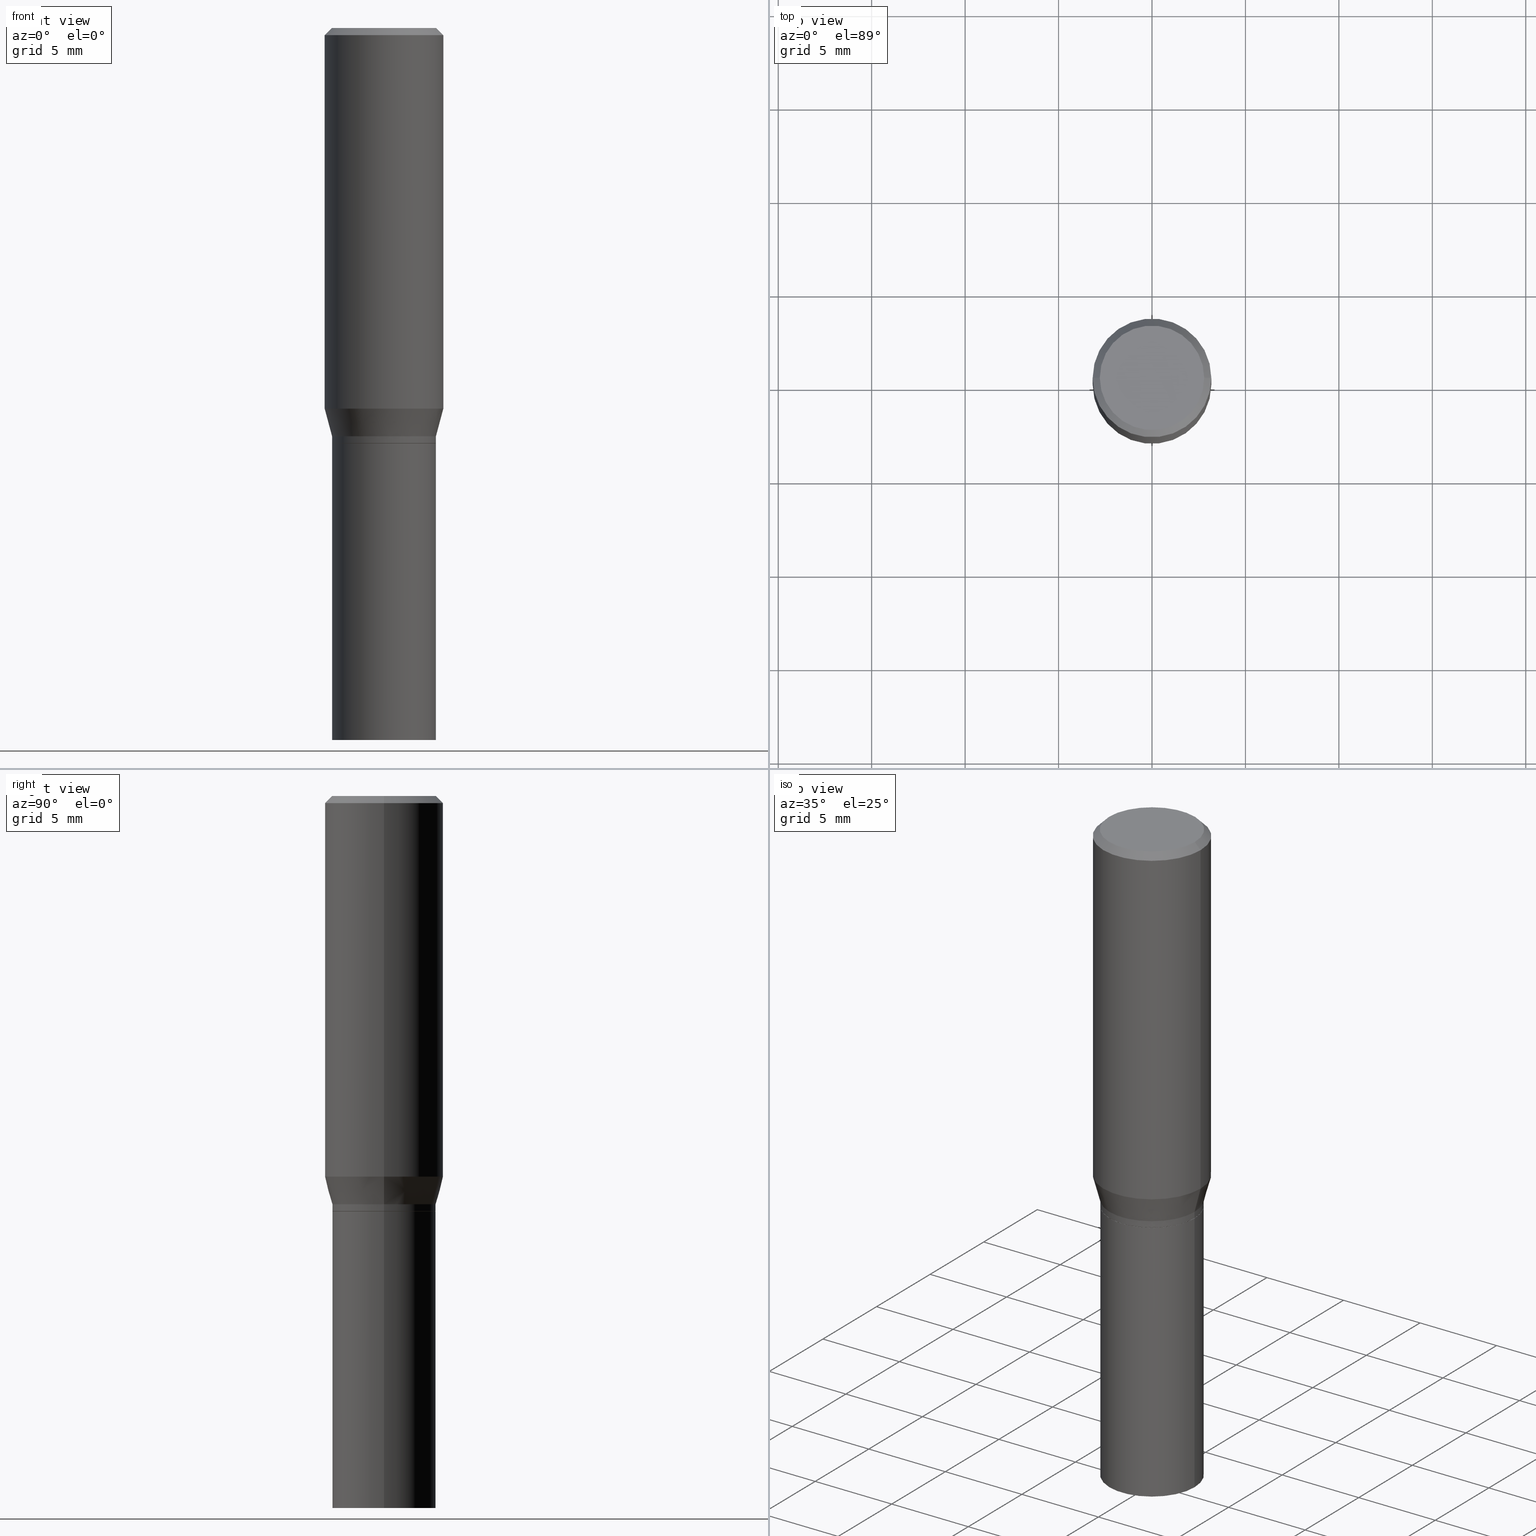
[diagram: canonical four-view strip — front | top / right | iso, engineering-drawing reading convention]
A machine part, canonical four-view strip (front | top / right | iso — engineering-drawing reading convention). The complete STEP part file that produces these views, byte-faithful:
ISO-10303-21;
HEADER;
FILE_DESCRIPTION (( 'STEP AP203' ),
    '1' );
FILE_NAME ('35280.STEP',
    '2024-03-13T16:39:05',
    ( '' ),
    ( '' ),
    'SwSTEP 2.0',
    'SolidWorks 2023',
    '' );
FILE_SCHEMA (( 'CONFIG_CONTROL_DESIGN' ));
ENDSEC;

DATA;
#1 = CALENDAR_DATE ( 2024, 13, 3 ) ;
#2 = CARTESIAN_POINT ( 'NONE',  ( -0.1094000000000000389, -2.225340198483555672E-15, -0.8600000000000000977 ) ) ;
#3 = CC_DESIGN_PERSON_AND_ORGANIZATION_ASSIGNMENT ( #339, #132, ( #230 ) ) ;
#4 = CIRCLE ( 'NONE', #295, 0.1088999999999999968 ) ;
#5 = DIRECTION ( 'NONE',  ( -1.000000000000000000, 6.982962677686266711E-15, 0.000000000000000000 ) ) ;
#6 = CARTESIAN_POINT ( 'NONE',  ( 3.668203209277704895E-29, -5.237222008264718177E-15, -1.500000000000000222 ) ) ;
#7 = DIRECTION ( 'NONE',  ( 1.000000000000000000, -6.982962677686269866E-15, 0.000000000000000000 ) ) ;
#8 = CARTESIAN_POINT ( 'NONE',  ( -0.1088999999999999968, -2.278615905070892449E-15, -0.8750000000000001110 ) ) ;
#9 = CARTESIAN_POINT ( 'NONE',  ( -0.1088999999999999968, -2.281265132245003256E-15, -0.8750000000000001110 ) ) ;
#10 = CC_DESIGN_DATE_AND_TIME_ASSIGNMENT ( #195, #383, ( #411 ) ) ;
#11 = ORIENTED_EDGE ( 'NONE', *, *, #313, .T. ) ;
#12 = CYLINDRICAL_SURFACE ( 'NONE', #163, 0.1093999999999999972 ) ;
#13 = ORIENTED_EDGE ( 'NONE', *, *, #288, .F. ) ;
#14 = DIRECTION ( 'NONE',  ( 1.000000000000000000, -6.982962677686266711E-15, 4.876176775795935793E-29 ) ) ;
#15 = VERTEX_POINT ( 'NONE', #8 ) ;
#16 = ADVANCED_FACE ( 'NONE', ( #149 ), #277, .T. ) ;
#17 = FACE_OUTER_BOUND ( 'NONE', #231, .T. ) ;
#18 = ORIENTED_EDGE ( 'NONE', *, *, #113, .T. ) ;
#19 = DIMENSIONAL_EXPONENTS ( 1.000000000000000000, 0.000000000000000000, 0.000000000000000000, 0.000000000000000000, 0.000000000000000000, 0.000000000000000000, 0.000000000000000000 ) ;
#20 = DESIGN_CONTEXT ( 'detailed design', #275, 'design' ) ;
#21 = APPROVAL_ROLE ( '' ) ;
#22 = DATE_AND_TIME ( #127, #27 ) ;
#23 = LINE ( 'NONE', #135, #461 ) ;
#24 = APPROVAL_STATUS ( 'not_yet_approved' ) ;
#25 = CLOSED_SHELL ( 'NONE', ( #44, #391, #154, #79, #281, #425, #321, #185, #375, #38, #134, #258 ) ) ;
#26 = EDGE_CURVE ( 'NONE', #320, #83, #365, .T. ) ;
#27 = LOCAL_TIME ( 12, 39, 5.000000000000000000, #59 ) ;
#28 = COORDINATED_UNIVERSAL_TIME_OFFSET ( 5, 0, .BEHIND. ) ;
#29 = PERSON_AND_ORGANIZATION_ROLE ( 'creator' ) ;
#30 = EDGE_CURVE ( 'NONE', #151, #400, #253, .T. ) ;
#31 = DIRECTION ( 'NONE',  ( 1.000000000000000000, -6.982962677686266711E-15, 4.876001053725558154E-29 ) ) ;
#32 = CONICAL_SURFACE ( 'NONE', #293, 0.1250000000000000000, 0.7853981633974483900 ) ;
#33 = AXIS2_PLACEMENT_3D ( 'NONE', #447, #189, #362 ) ;
#34 = CARTESIAN_POINT ( 'NONE',  ( -0.1093999999999999972, -3.368800336954685870E-15, -1.500000000000000222 ) ) ;
#35 = EDGE_LOOP ( 'NONE', ( #453, #46, #416, #188 ) ) ;
#36 = CARTESIAN_POINT ( 'NONE',  ( 0.1100000000000000006, -8.322946247794786836E-16, -7.674416657715788472E-18 ) ) ;
#37 = CARTESIAN_POINT ( 'NONE',  ( 1.960727997524298183E-29, -2.799399933701343752E-15, -0.8017800074019261203 ) ) ;
#38 = ADVANCED_FACE ( 'NONE', ( #422 ), #308, .F. ) ;
#39 = AXIS2_PLACEMENT_3D ( 'NONE', #382, #200, #198 ) ;
#40 = CC_DESIGN_SECURITY_CLASSIFICATION ( #411, ( #286 ) ) ;
#41 = CARTESIAN_POINT ( 'NONE',  ( 2.139785205411994522E-29, -3.055046171487752730E-15, -0.8750000000000001110 ) ) ;
#42 = DIRECTION ( 'NONE',  ( -2.445468806185136597E-29, 3.491481338843145583E-15, 1.000000000000000000 ) ) ;
#43 = VERTEX_POINT ( 'NONE', #347 ) ;
#44 = ADVANCED_FACE ( 'NONE', ( #95 ), #98, .T. ) ;
#45 = CARTESIAN_POINT ( 'NONE',  ( 0.1250000000000000000, -9.252425547934304180E-16, -0.01499999999999999944 ) ) ;
#46 = ORIENTED_EDGE ( 'NONE', *, *, #30, .T. ) ;
#47 = AXIS2_PLACEMENT_3D ( 'NONE', #6, #212, #147 ) ;
#48 = LINE ( 'NONE', #408, #387 ) ;
#49 = ORIENTED_EDGE ( 'NONE', *, *, #359, .F. ) ;
#50 = DIRECTION ( 'NONE',  ( -2.445468806185136597E-29, 3.491481338843145583E-15, 1.000000000000000000 ) ) ;
#51 = ORIENTED_EDGE ( 'NONE', *, *, #192, .F. ) ;
#52 = EDGE_CURVE ( 'NONE', #54, #431, #236, .T. ) ;
#53 = DIRECTION ( 'NONE',  ( 1.000000000000000000, -6.982962677686264344E-15, 0.000000000000000000 ) ) ;
#54 = VERTEX_POINT ( 'NONE', #460 ) ;
#55 = CALENDAR_DATE ( 2024, 13, 3 ) ;
#56 = CC_DESIGN_APPROVAL ( #348, ( #411 ) ) ;
#57 = DIRECTION ( 'NONE',  ( 1.000000000000000000, -6.982962677686265922E-15, 4.876176775795935793E-29 ) ) ;
#58 = MECHANICAL_CONTEXT ( 'NONE', #403, 'mechanical' ) ;
#59 = COORDINATED_UNIVERSAL_TIME_OFFSET ( 5, 0, .BEHIND. ) ;
#60 = DIRECTION ( 'NONE',  ( -2.438088387897960049E-29, 3.491481338843145188E-15, 1.000000000000000000 ) ) ;
#61 = PERSON_AND_ORGANIZATION ( #162, #92 ) ;
#62 = CARTESIAN_POINT ( 'NONE',  ( 2.103103173319217765E-29, -3.002673951405105651E-15, -0.8600000000000000977 ) ) ;
#63 = AXIS2_PLACEMENT_3D ( 'NONE', #138, #428, #101 ) ;
#64 =( LENGTH_UNIT ( ) NAMED_UNIT ( * ) SI_UNIT ( $, .METRE. ) );
#65 = CARTESIAN_POINT ( 'NONE',  ( 0.1088999999999999968, -3.815490807087786506E-15, -0.8750000000000001110 ) ) ;
#66 = PRODUCT_RELATED_PRODUCT_CATEGORY ( 'detail', '', ( #230 ) ) ;
#67 = DIRECTION ( 'NONE',  ( -2.445468806185136597E-29, 3.491481338843145583E-15, 1.000000000000000000 ) ) ;
#68 = DIRECTION ( 'NONE',  ( 1.000000000000000000, -6.982962677686266711E-15, 4.876001053725558154E-29 ) ) ;
#69 = ORIENTED_EDGE ( 'NONE', *, *, #414, .T. ) ;
#70 = AXIS2_PLACEMENT_3D ( 'NONE', #37, #168, #283 ) ;
#71 = VECTOR ( 'NONE', #360, 39.37007874015748143 ) ;
#72 = FACE_OUTER_BOUND ( 'NONE', #262, .T. ) ;
#73 = DIRECTION ( 'NONE',  ( 2.445468806185136597E-29, -3.491481338843145583E-15, -1.000000000000000000 ) ) ;
#74 = ADVANCED_FACE ( 'NONE', ( #128 ), #270, .F. ) ;
#75 = DIRECTION ( 'NONE',  ( -1.000000000000000000, 6.982962677686266711E-15, 0.000000000000000000 ) ) ;
#76 = AXIS2_PLACEMENT_3D ( 'NONE', #206, #60, #57 ) ;
#77 = CONICAL_SURFACE ( 'NONE', #63, 0.1094000000000000389, 0.2617993877991507401 ) ;
#78 = LINE ( 'NONE', #218, #71 ) ;
#79 = ADVANCED_FACE ( 'NONE', ( #234 ), #279, .T. ) ;
#80 = CARTESIAN_POINT ( 'NONE',  ( -0.1250000000000000000, -5.377076571918702821E-16, -0.01499999999999999944 ) ) ;
#81 = ORIENTED_EDGE ( 'NONE', *, *, #229, .T. ) ;
#82 = CARTESIAN_POINT ( 'NONE',  ( 0.1094000000000000528, -3.817236547757208798E-15, -0.8745000000000000551 ) ) ;
#83 = VERTEX_POINT ( 'NONE', #379 ) ;
#84 = APPROVAL_PERSON_ORGANIZATION ( #237, #399, #235 ) ;
#85 = DIRECTION ( 'NONE',  ( -0.7071067811865475727, 2.468850131082257455E-15, -0.7071067811865474617 ) ) ;
#86 = EDGE_CURVE ( 'NONE', #15, #54, #440, .T. ) ;
#87 = ORIENTED_EDGE ( 'NONE', *, *, #192, .T. ) ;
#88 = DIRECTION ( 'NONE',  ( -2.445468806185136597E-29, 3.491481338843145583E-15, 1.000000000000000000 ) ) ;
#89 = EDGE_LOOP ( 'NONE', ( #366, #392, #257, #317 ) ) ;
#90 = ORIENTED_EDGE ( 'NONE', *, *, #238, .T. ) ;
#91 = AXIS2_PLACEMENT_3D ( 'NONE', #356, #216, #357 ) ;
#92 = ORGANIZATION ( 'UNSPECIFIED', 'UNSPECIFIED', '' ) ;
#93 = DIRECTION ( 'NONE',  ( -1.000000000000000000, 6.982962677686265922E-15, -4.876176775795935793E-29 ) ) ;
#94 = CC_DESIGN_PERSON_AND_ORGANIZATION_ASSIGNMENT ( #349, #29, ( #286 ) ) ;
#95 = FACE_OUTER_BOUND ( 'NONE', #190, .T. ) ;
#96 = APPROVAL_DATE_TIME ( #22, #436 ) ;
#97 = CARTESIAN_POINT ( 'NONE',  ( 0.000000000000000000, 0.000000000000000000, 0.000000000000000000 ) ) ;
#98 = CYLINDRICAL_SURFACE ( 'NONE', #136, 0.1094000000000000389 ) ;
#99 = CONICAL_SURFACE ( 'NONE', #322, 0.1250000000000000000, 0.7853981633974483900 ) ;
#100 = DIRECTION ( 'NONE',  ( -2.445468806185136597E-29, 3.491481338843145583E-15, 1.000000000000000000 ) ) ;
#101 = DIRECTION ( 'NONE',  ( 1.000000000000000000, -6.982962677686266711E-15, 0.000000000000000000 ) ) ;
#102 = ORIENTED_EDGE ( 'NONE', *, *, #243, .F. ) ;
#103 = DIRECTION ( 'NONE',  ( 1.000000000000000000, -6.982962677686266711E-15, 0.000000000000000000 ) ) ;
#104 = ORIENTED_EDGE ( 'NONE', *, *, #26, .F. ) ;
#105 = AXIS2_PLACEMENT_3D ( 'NONE', #318, #112, #465 ) ;
#106 = EDGE_CURVE ( 'NONE', #43, #226, #384, .T. ) ;
#107 = CARTESIAN_POINT ( 'NONE',  ( -0.1093999999999999972, -3.368800336954685870E-15, -0.8750000000000001110 ) ) ;
#108 = ORIENTED_EDGE ( 'NONE', *, *, #451, .T. ) ;
#109 = DIRECTION ( 'NONE',  ( 1.000000000000000000, -6.982962677686264344E-15, 0.000000000000000000 ) ) ;
#110 = ORIENTED_EDGE ( 'NONE', *, *, #276, .T. ) ;
#111 = EDGE_CURVE ( 'NONE', #186, #142, #23, .T. ) ;
#112 = DIRECTION ( 'NONE',  ( -2.445468806185136597E-29, 3.491481338843145583E-15, 1.000000000000000000 ) ) ;
#113 = EDGE_CURVE ( 'NONE', #83, #320, #386, .T. ) ;
#114 = CARTESIAN_POINT ( 'NONE',  ( 2.139785205411994522E-29, -3.055046171487752730E-15, -0.8750000000000001110 ) ) ;
#115 = ORIENTED_EDGE ( 'NONE', *, *, #265, .T. ) ;
#116 = FACE_OUTER_BOUND ( 'NONE', #299, .T. ) ;
#117 = ORIENTED_EDGE ( 'NONE', *, *, #30, .F. ) ;
#118 = CARTESIAN_POINT ( 'NONE',  ( 2.103103173319217765E-29, -3.002673951405105651E-15, -0.8600000000000000977 ) ) ;
#119 = EDGE_LOOP ( 'NONE', ( #220, #153, #374, #108 ) ) ;
#120 = AXIS2_PLACEMENT_3D ( 'NONE', #62, #314, #424 ) ;
#121 = EDGE_CURVE ( 'NONE', #431, #251, #232, .T. ) ;
#122 = AXIS2_PLACEMENT_3D ( 'NONE', #298, #42, #305 ) ;
#123 = CARTESIAN_POINT ( 'NONE',  ( 0.1094000000000000389, -7.639361169388778676E-16, 5.334537392720755310E-30 ) ) ;
#124 = ORIENTED_EDGE ( 'NONE', *, *, #106, .F. ) ;
#125 = DIRECTION ( 'NONE',  ( 1.000000000000000000, 0.000000000000000000, 0.000000000000000000 ) ) ;
#126 = ORIENTED_EDGE ( 'NONE', *, *, #214, .F. ) ;
#127 = CALENDAR_DATE ( 2024, 13, 3 ) ;
#128 = FACE_OUTER_BOUND ( 'NONE', #223, .T. ) ;
#129 = VECTOR ( 'NONE', #324, 39.37007874015748854 ) ;
#130 = PERSON_AND_ORGANIZATION_ROLE ( 'design_supplier' ) ;
#131 = AXIS2_PLACEMENT_3D ( 'NONE', #178, #327, #7 ) ;
#132 = PERSON_AND_ORGANIZATION_ROLE ( 'design_owner' ) ;
#133 = DIRECTION ( 'NONE',  ( -2.445468806185136597E-29, 3.491481338843145583E-15, 1.000000000000000000 ) ) ;
#134 = ADVANCED_FACE ( 'NONE', ( #249 ), #201, .T. ) ;
#135 = CARTESIAN_POINT ( 'NONE',  ( -0.1093999999999999972, 7.773337529215495838E-16, -5.381314988738867416E-30 ) ) ;
#136 = AXIS2_PLACEMENT_3D ( 'NONE', #97, #161, #196 ) ;
#137 = VECTOR ( 'NONE', #316, 39.37007874015748143 ) ;
#138 = CARTESIAN_POINT ( 'NONE',  ( 2.103103173319217765E-29, -3.002673951405105651E-15, -0.8600000000000000977 ) ) ;
#139 = LINE ( 'NONE', #167, #137 ) ;
#140 = ORIENTED_EDGE ( 'NONE', *, *, #229, .F. ) ;
#141 = DIRECTION ( 'NONE',  ( -2.445468806185136597E-29, 3.491481338843145583E-15, 1.000000000000000000 ) ) ;
#142 = VERTEX_POINT ( 'NONE', #107 ) ;
#143 = AXIS2_PLACEMENT_3D ( 'NONE', #210, #289, #103 ) ;
#144 = CIRCLE ( 'NONE', #131, 0.1093999999999999972 ) ;
#145 = FACE_OUTER_BOUND ( 'NONE', #290, .T. ) ;
#146 = CC_DESIGN_PERSON_AND_ORGANIZATION_ASSIGNMENT ( #166, #130, ( #286 ) ) ;
#147 = DIRECTION ( 'NONE',  ( 1.000000000000000000, -6.982962677686269866E-15, 0.000000000000000000 ) ) ;
#148 = LINE ( 'NONE', #9, #338 ) ;
#149 = FACE_OUTER_BOUND ( 'NONE', #406, .T. ) ;
#150 = LINE ( 'NONE', #123, #457 ) ;
#151 = VERTEX_POINT ( 'NONE', #398 ) ;
#152 = CARTESIAN_POINT ( 'NONE',  ( 0.000000000000000000, 0.000000000000000000, 0.000000000000000000 ) ) ;
#153 = ORIENTED_EDGE ( 'NONE', *, *, #265, .F. ) ;
#154 = ADVANCED_FACE ( 'NONE', ( #72 ), #99, .T. ) ;
#155 = DIRECTION ( 'NONE',  ( -2.445468806185136877E-29, 3.491481338843145188E-15, 1.000000000000000000 ) ) ;
#156 = ORIENTED_EDGE ( 'NONE', *, *, #204, .F. ) ;
#157 = CIRCLE ( 'NONE', #183, 0.1093999999999999972 ) ;
#158 = FACE_OUTER_BOUND ( 'NONE', #449, .T. ) ;
#159 = ORIENTED_EDGE ( 'NONE', *, *, #106, .T. ) ;
#160 = APPROVAL_ROLE ( '' ) ;
#161 = DIRECTION ( 'NONE',  ( -2.445468806185136597E-29, 3.491481338843145583E-15, 1.000000000000000000 ) ) ;
#162 = PERSON ( 'UNSPECIFIED', 'UNSPECIFIED', 'UNSPECIFIED', ('UNSPECIFIED'), ('UNSPECIFIED'), ('UNSPECIFIED') ) ;
#163 = AXIS2_PLACEMENT_3D ( 'NONE', #152, #88, #452 ) ;
#164 = CALENDAR_DATE ( 2024, 13, 3 ) ;
#165 = CARTESIAN_POINT ( 'NONE',  ( 0.1093999999999999972, -7.639361169388775718E-16, 5.334537392720753909E-30 ) ) ;
#166 = PERSON_AND_ORGANIZATION ( #162, #92 ) ;
#167 = CARTESIAN_POINT ( 'NONE',  ( -0.1250000000000000000, 8.881784197001252323E-16, -6.148668862818632227E-30 ) ) ;
#168 = DIRECTION ( 'NONE',  ( -2.445468806185136597E-29, 3.491481338843145583E-15, 1.000000000000000000 ) ) ;
#169 = CC_DESIGN_DATE_AND_TIME_ASSIGNMENT ( #311, #421, ( #385 ) ) ;
#170 = ORIENTED_EDGE ( 'NONE', *, *, #238, .F. ) ;
#171 = SHAPE_DEFINITION_REPRESENTATION ( #409, #177 ) ;
#172 = CARTESIAN_POINT ( 'NONE',  ( -0.1100000000000000006, 7.943120045868128186E-16, -7.674416657726847932E-18 ) ) ;
#173 = EDGE_LOOP ( 'NONE', ( #370, #248, #444, #334 ) ) ;
#174 = CARTESIAN_POINT ( 'NONE',  ( 1.876754654212523840E-46, -2.679508254694119990E-32, -7.674416657721384454E-18 ) ) ;
#175 = EDGE_CURVE ( 'NONE', #251, #431, #182, .T. ) ;
#176 = CARTESIAN_POINT ( 'NONE',  ( 0.1093999999999999972, -3.818982288426630302E-15, -0.8750000000000001110 ) ) ;
#177 = ADVANCED_BREP_SHAPE_REPRESENTATION ( '35280', ( #221, #381, #310 ), #254 ) ;
#178 = CARTESIAN_POINT ( 'NONE',  ( 3.668203209277704895E-29, -5.237222008264718177E-15, -1.500000000000000222 ) ) ;
#179 = ORIENTED_EDGE ( 'NONE', *, *, #26, .T. ) ;
#180 = DIRECTION ( 'NONE',  ( -2.445468806185136597E-29, 3.491481338843145583E-15, 1.000000000000000000 ) ) ;
#181 = EDGE_LOOP ( 'NONE', ( #446, #69, #159, #13 ) ) ;
#182 = CIRCLE ( 'NONE', #91, 0.1094000000000000528 ) ;
#183 = AXIS2_PLACEMENT_3D ( 'NONE', #434, #247, #355 ) ;
#184 = DIRECTION ( 'NONE',  ( 1.000000000000000000, -6.982962677686266711E-15, 0.000000000000000000 ) ) ;
#185 = ADVANCED_FACE ( 'NONE', ( #397 ), #32, .T. ) ;
#186 = VERTEX_POINT ( 'NONE', #34 ) ;
#187 = DIRECTION ( 'NONE',  ( 1.000000000000000000, -6.982962677686266711E-15, 0.000000000000000000 ) ) ;
#188 = ORIENTED_EDGE ( 'NONE', *, *, #451, .F. ) ;
#189 = DIRECTION ( 'NONE',  ( 2.438088387897960049E-29, -3.491481338843145188E-15, -1.000000000000000000 ) ) ;
#190 = EDGE_LOOP ( 'NONE', ( #363, #87, #404, #336 ) ) ;
#191 = AXIS2_PLACEMENT_3D ( 'NONE', #437, #141, #250 ) ;
#192 = EDGE_CURVE ( 'NONE', #251, #320, #213, .T. ) ;
#193 = VECTOR ( 'NONE', #405, 39.37007874015748143 ) ;
#194 = UNCERTAINTY_MEASURE_WITH_UNIT (LENGTH_MEASURE( 1.000000000000000082E-05 ), #278, 'distance_accuracy_value', 'NONE');
#195 = DATE_AND_TIME ( #55, #315 ) ;
#196 = DIRECTION ( 'NONE',  ( 1.000000000000000000, -6.982962677686266711E-15, 4.876176775795935232E-29 ) ) ;
#197 = APPROVAL_STATUS ( 'not_yet_approved' ) ;
#198 = DIRECTION ( 'NONE',  ( 1.000000000000000000, -6.982962677686266711E-15, 4.876176775795935793E-29 ) ) ;
#199 = PERSON_AND_ORGANIZATION ( #162, #92 ) ;
#200 = DIRECTION ( 'NONE',  ( -2.445468806185136597E-29, 3.491481338843145583E-15, 1.000000000000000000 ) ) ;
#201 = CONICAL_SURFACE ( 'NONE', #393, 0.1088999999999999968, 0.7853981633974653764 ) ;
#202 = APPROVAL_STATUS ( 'not_yet_approved' ) ;
#203 = DIRECTION ( 'NONE',  ( 1.000000000000000000, -6.982962677686266711E-15, 0.000000000000000000 ) ) ;
#204 = EDGE_CURVE ( 'NONE', #83, #400, #282, .T. ) ;
#205 = DATE_AND_TIME ( #456, #450 ) ;
#206 = CARTESIAN_POINT ( 'NONE',  ( 2.139785205411994522E-29, -3.055046171487752730E-15, -0.8750000000000001110 ) ) ;
#207 = APPROVAL_DATE_TIME ( #215, #348 ) ;
#208 = DIRECTION ( 'NONE',  ( -2.445468806185136597E-29, 3.491481338843145583E-15, 1.000000000000000000 ) ) ;
#209 = VECTOR ( 'NONE', #285, 39.37007874015748854 ) ;
#210 = CARTESIAN_POINT ( 'NONE',  ( 2.103103173319217765E-29, -3.002673951405105651E-15, -0.8600000000000000977 ) ) ;
#211 = AXIS2_PLACEMENT_3D ( 'NONE', #118, #442, #184 ) ;
#212 = DIRECTION ( 'NONE',  ( -2.445468806185136597E-29, 3.491481338843145583E-15, 1.000000000000000000 ) ) ;
#213 = LINE ( 'NONE', #439, #420 ) ;
#214 = EDGE_CURVE ( 'NONE', #297, #306, #271, .T. ) ;
#215 = DATE_AND_TIME ( #1, #241 ) ;
#216 = DIRECTION ( 'NONE',  ( -2.445468806185136597E-29, 3.491481338843145583E-15, 1.000000000000000000 ) ) ;
#217 = APPROVAL_PERSON_ORGANIZATION ( #61, #348, #21 ) ;
#218 = CARTESIAN_POINT ( 'NONE',  ( 0.1250000000000000000, -8.728703347107833388E-16, 6.095220969744919741E-30 ) ) ;
#219 = CARTESIAN_POINT ( 'NONE',  ( 0.000000000000000000, 0.000000000000000000, 0.000000000000000000 ) ) ;
#220 = ORIENTED_EDGE ( 'NONE', *, *, #429, .F. ) ;
#221 = MANIFOLD_SOLID_BREP ( 'Body-Move/Copy2[1]', #376 ) ;
#222 = DIRECTION ( 'NONE',  ( -2.445468806185136597E-29, 3.491481338843145583E-15, 1.000000000000000000 ) ) ;
#223 = EDGE_LOOP ( 'NONE', ( #266, #287 ) ) ;
#224 = AXIS2_PLACEMENT_3D ( 'NONE', #371, #252, #301 ) ;
#225 = FACE_OUTER_BOUND ( 'NONE', #181, .T. ) ;
#226 = VERTEX_POINT ( 'NONE', #176 ) ;
#227 = PLANE ( 'NONE',  #224 ) ;
#228 = ORIENTED_EDGE ( 'NONE', *, *, #407, .F. ) ;
#229 = EDGE_CURVE ( 'NONE', #400, #151, #240, .T. ) ;
#230 = PRODUCT ( '35280', '35280', '', ( #58 ) ) ;
#231 = EDGE_LOOP ( 'NONE', ( #102, #333 ) ) ;
#232 = CIRCLE ( 'NONE', #191, 0.1094000000000000528 ) ;
#233 = PERSON_AND_ORGANIZATION_ROLE ( 'creator' ) ;
#234 = FACE_OUTER_BOUND ( 'NONE', #372, .T. ) ;
#235 = APPROVAL_ROLE ( '' ) ;
#236 = LINE ( 'NONE', #65, #337 ) ;
#237 = PERSON_AND_ORGANIZATION ( #162, #92 ) ;
#238 = EDGE_CURVE ( 'NONE', #320, #151, #323, .T. ) ;
#239 = DIRECTION ( 'NONE',  ( 1.000000000000000000, -6.982962677686264344E-15, 0.000000000000000000 ) ) ;
#240 = CIRCLE ( 'NONE', #70, 0.1250000000000000000 ) ;
#241 = LOCAL_TIME ( 12, 39, 5.000000000000000000, #341 ) ;
#242 = DIRECTION ( 'NONE',  ( -2.445468806185136877E-29, 3.491481338843145188E-15, 1.000000000000000000 ) ) ;
#243 = EDGE_CURVE ( 'NONE', #43, #186, #246, .T. ) ;
#244 = CARTESIAN_POINT ( 'NONE',  ( -0.1094000000000000528, -2.275966677896780854E-15, -0.8745000000000000551 ) ) ;
#245 = EDGE_LOOP ( 'NONE', ( #413, #361 ) ) ;
#246 = CIRCLE ( 'NONE', #47, 0.1093999999999999972 ) ;
#247 = DIRECTION ( 'NONE',  ( -2.445468806185136597E-29, 3.491481338843145583E-15, 1.000000000000000000 ) ) ;
#248 = ORIENTED_EDGE ( 'NONE', *, *, #417, .T. ) ;
#249 = FACE_OUTER_BOUND ( 'NONE', #89, .T. ) ;
#250 = DIRECTION ( 'NONE',  ( 1.000000000000000000, -6.982962677686265922E-15, 0.000000000000000000 ) ) ;
#251 = VERTEX_POINT ( 'NONE', #244 ) ;
#252 = DIRECTION ( 'NONE',  ( -2.438088387897960049E-29, 3.491481338843145188E-15, 1.000000000000000000 ) ) ;
#253 = CIRCLE ( 'NONE', #284, 0.1250000000000000000 ) ;
#254 =( GEOMETRIC_REPRESENTATION_CONTEXT ( 3 ) GLOBAL_UNCERTAINTY_ASSIGNED_CONTEXT ( ( #194 ) ) GLOBAL_UNIT_ASSIGNED_CONTEXT ( ( #278, #378, #273 ) ) REPRESENTATION_CONTEXT ( 'NONE', 'WORKASPACE' ) );
#255 = AXIS2_PLACEMENT_3D ( 'NONE', #219, #332, #14 ) ;
#256 = CARTESIAN_POINT ( 'NONE',  ( -0.1094000000000000389, -2.068280856242386899E-15, -0.8600000000000000977 ) ) ;
#257 = ORIENTED_EDGE ( 'NONE', *, *, #52, .T. ) ;
#258 = ADVANCED_FACE ( 'NONE', ( #145 ), #319, .T. ) ;
#259 = CARTESIAN_POINT ( 'NONE',  ( 0.1250000000000000000, -9.099344698040885245E-16, -0.01499999999999999944 ) ) ;
#260 = ORIENTED_EDGE ( 'NONE', *, *, #204, .T. ) ;
#261 = CARTESIAN_POINT ( 'NONE',  ( 3.668203209277705088E-31, -5.237222008264718399E-17, -0.01499999999999999944 ) ) ;
#262 = EDGE_LOOP ( 'NONE', ( #126, #302, #435, #438 ) ) ;
#263 = AXIS2_PLACEMENT_3D ( 'NONE', #174, #351, #68 ) ;
#264 = CARTESIAN_POINT ( 'NONE',  ( 2.139785205411994522E-29, -3.055046171487752730E-15, -0.8750000000000001110 ) ) ;
#265 = EDGE_CURVE ( 'NONE', #306, #297, #462, .T. ) ;
#266 = ORIENTED_EDGE ( 'NONE', *, *, #359, .T. ) ;
#267 = APPLICATION_PROTOCOL_DEFINITION ( 'international standard', 'config_control_design', 1994, #403 ) ;
#268 = ORIENTED_EDGE ( 'NONE', *, *, #243, .T. ) ;
#269 = PERSON_AND_ORGANIZATION ( #162, #92 ) ;
#270 = PLANE ( 'NONE',  #448 ) ;
#271 = CIRCLE ( 'NONE', #263, 0.1100000000000000006 ) ;
#272 = CC_DESIGN_APPROVAL ( #436, ( #385 ) ) ;
#273 =( NAMED_UNIT ( * ) SI_UNIT ( $, .STERADIAN. ) SOLID_ANGLE_UNIT ( ) );
#274 = DIRECTION ( 'NONE',  ( -2.445468806185136597E-29, 3.491481338843145583E-15, 1.000000000000000000 ) ) ;
#275 = APPLICATION_CONTEXT ( 'configuration controlled 3d designs of mechanical parts and assemblies' ) ;
#276 = EDGE_CURVE ( 'NONE', #151, #410, #139, .T. ) ;
#277 = CYLINDRICAL_SURFACE ( 'NONE', #432, 0.1093999999999999972 ) ;
#278 =( CONVERSION_BASED_UNIT ( 'INCH', #344 ) LENGTH_UNIT ( ) NAMED_UNIT ( #19 ) );
#279 = CYLINDRICAL_SURFACE ( 'NONE', #39, 0.1250000000000000000 ) ;
#280 = CONICAL_SURFACE ( 'NONE', #211, 0.1094000000000000389, 0.2617993877991507401 ) ;
#281 = ADVANCED_FACE ( 'NONE', ( #463 ), #77, .T. ) ;
#282 = LINE ( 'NONE', #389, #209 ) ;
#283 = DIRECTION ( 'NONE',  ( 1.000000000000000000, -6.982962677686266711E-15, 0.000000000000000000 ) ) ;
#284 = AXIS2_PLACEMENT_3D ( 'NONE', #340, #100, #203 ) ;
#285 = DIRECTION ( 'NONE',  ( 0.2588190451025219607, 1.565188264969616840E-15, 0.9659258262890678681 ) ) ;
#286 = PRODUCT_DEFINITION_FORMATION_WITH_SPECIFIED_SOURCE ( 'ANY', '', #230, .NOT_KNOWN. ) ;
#287 = ORIENTED_EDGE ( 'NONE', *, *, #288, .T. ) ;
#288 = EDGE_CURVE ( 'NONE', #142, #226, #157, .T. ) ;
#289 = DIRECTION ( 'NONE',  ( -2.445468806185136597E-29, 3.491481338843145583E-15, 1.000000000000000000 ) ) ;
#290 = EDGE_LOOP ( 'NONE', ( #51, #294, #11, #104 ) ) ;
#291 = CARTESIAN_POINT ( 'NONE',  ( 3.668203209277705088E-31, -5.237222008264718399E-17, -0.01499999999999999944 ) ) ;
#292 = DIRECTION ( 'NONE',  ( -0.7071067811865595631, 7.493145998870398336E-15, 0.7071067811865354713 ) ) ;
#293 = AXIS2_PLACEMENT_3D ( 'NONE', #291, #73, #5 ) ;
#294 = ORIENTED_EDGE ( 'NONE', *, *, #175, .T. ) ;
#295 = AXIS2_PLACEMENT_3D ( 'NONE', #264, #412, #53 ) ;
#296 = FACE_OUTER_BOUND ( 'NONE', #35, .T. ) ;
#297 = VERTEX_POINT ( 'NONE', #36 ) ;
#298 = CARTESIAN_POINT ( 'NONE',  ( 2.139785205411994522E-29, -3.055046171487752730E-15, -0.8750000000000001110 ) ) ;
#299 = EDGE_LOOP ( 'NONE', ( #170, #179, #260, #117 ) ) ;
#300 = CC_DESIGN_PERSON_AND_ORGANIZATION_ASSIGNMENT ( #199, #373, ( #411 ) ) ;
#301 = DIRECTION ( 'NONE',  ( 1.000000000000000000, -6.982962677686265922E-15, 4.876176775795935793E-29 ) ) ;
#302 = ORIENTED_EDGE ( 'NONE', *, *, #429, .T. ) ;
#303 = AXIS2_PLACEMENT_3D ( 'NONE', #312, #133, #239 ) ;
#304 = AXIS2_PLACEMENT_3D ( 'NONE', #114, #180, #335 ) ;
#305 = DIRECTION ( 'NONE',  ( 1.000000000000000000, -6.982962677686264344E-15, 0.000000000000000000 ) ) ;
#306 = VERTEX_POINT ( 'NONE', #172 ) ;
#307 = PERSON_AND_ORGANIZATION ( #162, #92 ) ;
#308 = PLANE ( 'NONE',  #76 ) ;
#309 = DIRECTION ( 'NONE',  ( 0.000000000000000000, 0.000000000000000000, 1.000000000000000000 ) ) ;
#310 = AXIS2_PLACEMENT_3D ( 'NONE', #418, #309, #125 ) ;
#311 = DATE_AND_TIME ( #164, #352 ) ;
#312 = CARTESIAN_POINT ( 'NONE',  ( 2.139785205411994522E-29, -3.055046171487752730E-15, -0.8750000000000001110 ) ) ;
#313 = EDGE_CURVE ( 'NONE', #431, #83, #150, .T. ) ;
#314 = DIRECTION ( 'NONE',  ( -2.445468806185136597E-29, 3.491481338843145583E-15, 1.000000000000000000 ) ) ;
#315 = LOCAL_TIME ( 12, 39, 5.000000000000000000, #458 ) ;
#316 = DIRECTION ( 'NONE',  ( -2.445468806185136877E-29, 3.491481338843145188E-15, 1.000000000000000000 ) ) ;
#317 = ORIENTED_EDGE ( 'NONE', *, *, #175, .F. ) ;
#318 = CARTESIAN_POINT ( 'NONE',  ( 0.000000000000000000, 0.000000000000000000, 0.000000000000000000 ) ) ;
#319 = CYLINDRICAL_SURFACE ( 'NONE', #105, 0.1094000000000000389 ) ;
#320 = VERTEX_POINT ( 'NONE', #256 ) ;
#321 = ADVANCED_FACE ( 'NONE', ( #296 ), #443, .T. ) ;
#322 = AXIS2_PLACEMENT_3D ( 'NONE', #390, #353, #75 ) ;
#323 = LINE ( 'NONE', #2, #129 ) ;
#324 = DIRECTION ( 'NONE',  ( -0.2588190451025219607, 5.211531920934553408E-15, 0.9659258262890678681 ) ) ;
#325 = EDGE_CURVE ( 'NONE', #54, #15, #4, .T. ) ;
#326 = CC_DESIGN_PERSON_AND_ORGANIZATION_ASSIGNMENT ( #307, #233, ( #385 ) ) ;
#327 = DIRECTION ( 'NONE',  ( -2.445468806185136597E-29, 3.491481338843145583E-15, 1.000000000000000000 ) ) ;
#328 = ORIENTED_EDGE ( 'NONE', *, *, #464, .F. ) ;
#329 = FACE_OUTER_BOUND ( 'NONE', #173, .T. ) ;
#330 = ORIENTED_EDGE ( 'NONE', *, *, #214, .T. ) ;
#331 = CONICAL_SURFACE ( 'NONE', #122, 0.1088999999999999968, 0.7853981633974653764 ) ;
#332 = DIRECTION ( 'NONE',  ( -2.445468806185136597E-29, 3.491481338843145583E-15, 1.000000000000000000 ) ) ;
#333 = ORIENTED_EDGE ( 'NONE', *, *, #414, .F. ) ;
#334 = ORIENTED_EDGE ( 'NONE', *, *, #52, .F. ) ;
#335 = DIRECTION ( 'NONE',  ( 1.000000000000000000, -6.982962677686269866E-15, 0.000000000000000000 ) ) ;
#336 = ORIENTED_EDGE ( 'NONE', *, *, #313, .F. ) ;
#337 = VECTOR ( 'NONE', #455, 39.37007874015748143 ) ;
#338 = VECTOR ( 'NONE', #292, 39.37007874015748143 ) ;
#339 = PERSON_AND_ORGANIZATION ( #162, #92 ) ;
#340 = CARTESIAN_POINT ( 'NONE',  ( 1.960727997524298183E-29, -2.799399933701343752E-15, -0.8017800074019261203 ) ) ;
#341 = COORDINATED_UNIVERSAL_TIME_OFFSET ( 5, 0, .BEHIND. ) ;
#342 = ADVANCED_FACE ( 'NONE', ( #225 ), #12, .T. ) ;
#343 = DIRECTION ( 'NONE',  ( -2.445468806185136877E-29, 3.491481338843145188E-15, 1.000000000000000000 ) ) ;
#344 = LENGTH_MEASURE_WITH_UNIT ( LENGTH_MEASURE( 0.02539999999999999897 ), #64 );
#345 = VECTOR ( 'NONE', #343, 39.37007874015748143 ) ;
#346 = AXIS2_PLACEMENT_3D ( 'NONE', #261, #222, #364 ) ;
#347 = CARTESIAN_POINT ( 'NONE',  ( 0.1093999999999999972, -6.001158125203596537E-15, -1.500000000000000222 ) ) ;
#348 = APPROVAL ( #202, 'UNSPECIFIED' ) ;
#349 = PERSON_AND_ORGANIZATION ( #162, #92 ) ;
#350 = DIRECTION ( 'NONE',  ( 2.438088387897960049E-29, -3.491481338843145188E-15, -1.000000000000000000 ) ) ;
#351 = DIRECTION ( 'NONE',  ( -2.445468806185136597E-29, 3.491481338843145583E-15, 1.000000000000000000 ) ) ;
#352 = LOCAL_TIME ( 12, 39, 5.000000000000000000, #28 ) ;
#353 = DIRECTION ( 'NONE',  ( 2.445468806185136597E-29, -3.491481338843145583E-15, -1.000000000000000000 ) ) ;
#354 = VERTEX_POINT ( 'NONE', #45 ) ;
#355 = DIRECTION ( 'NONE',  ( 1.000000000000000000, -6.982962677686269866E-15, 0.000000000000000000 ) ) ;
#356 = CARTESIAN_POINT ( 'NONE',  ( 2.138562471008902281E-29, -3.053300430818330832E-15, -0.8745000000000000551 ) ) ;
#357 = DIRECTION ( 'NONE',  ( 1.000000000000000000, -6.982962677686265922E-15, 0.000000000000000000 ) ) ;
#358 = APPROVAL_PERSON_ORGANIZATION ( #269, #436, #160 ) ;
#359 = EDGE_CURVE ( 'NONE', #226, #142, #433, .T. ) ;
#360 = DIRECTION ( 'NONE',  ( -2.445468806185136877E-29, 3.491481338843145188E-15, 1.000000000000000000 ) ) ;
#361 = ORIENTED_EDGE ( 'NONE', *, *, #86, .F. ) ;
#362 = DIRECTION ( 'NONE',  ( -1.000000000000000000, 6.982962677686265922E-15, -4.876176775795935793E-29 ) ) ;
#363 = ORIENTED_EDGE ( 'NONE', *, *, #121, .T. ) ;
#364 = DIRECTION ( 'NONE',  ( 1.000000000000000000, -6.982962677686266711E-15, 0.000000000000000000 ) ) ;
#365 = CIRCLE ( 'NONE', #120, 0.1094000000000000389 ) ;
#366 = ORIENTED_EDGE ( 'NONE', *, *, #417, .F. ) ;
#367 = AXIS2_PLACEMENT_3D ( 'NONE', #430, #208, #31 ) ;
#368 = CARTESIAN_POINT ( 'NONE',  ( 3.668203209277705088E-31, -5.237222008264718399E-17, -0.01499999999999999944 ) ) ;
#369 = ADVANCED_FACE ( 'NONE', ( #17 ), #227, .F. ) ;
#370 = ORIENTED_EDGE ( 'NONE', *, *, #325, .T. ) ;
#371 = CARTESIAN_POINT ( 'NONE',  ( 3.576687321579069994E-29, -5.368277968210015545E-15, -1.500000000000000222 ) ) ;
#372 = EDGE_LOOP ( 'NONE', ( #81, #110, #328, #228 ) ) ;
#373 = PERSON_AND_ORGANIZATION_ROLE ( 'classification_officer' ) ;
#374 = ORIENTED_EDGE ( 'NONE', *, *, #459, .T. ) ;
#375 = ADVANCED_FACE ( 'NONE', ( #158 ), #401, .F. ) ;
#376 = CLOSED_SHELL ( 'NONE', ( #16, #369, #342, #74 ) ) ;
#377 = AXIS2_PLACEMENT_3D ( 'NONE', #368, #50, #187 ) ;
#378 =( NAMED_UNIT ( * ) PLANE_ANGLE_UNIT ( ) SI_UNIT ( $, .RADIAN. ) );
#379 = CARTESIAN_POINT ( 'NONE',  ( 0.1094000000000000389, -3.766610068343983617E-15, -0.8600000000000000977 ) ) ;
#380 = APPROVAL_DATE_TIME ( #205, #399 ) ;
#381 = MANIFOLD_SOLID_BREP ( 'Body-Move/Copy2[2]', #25 ) ;
#382 = CARTESIAN_POINT ( 'NONE',  ( 0.000000000000000000, 0.000000000000000000, 0.000000000000000000 ) ) ;
#383 = DATE_TIME_ROLE ( 'classification_date' ) ;
#384 = LINE ( 'NONE', #165, #345 ) ;
#385 = PRODUCT_DEFINITION ( 'UNKNOWN', '', #286, #20 ) ;
#386 = CIRCLE ( 'NONE', #143, 0.1094000000000000389 ) ;
#387 = VECTOR ( 'NONE', #85, 39.37007874015748143 ) ;
#388 = CARTESIAN_POINT ( 'NONE',  ( 0.000000000000000000, 0.000000000000000000, 0.000000000000000000 ) ) ;
#389 = CARTESIAN_POINT ( 'NONE',  ( 0.1094000000000000389, -3.766610068343983617E-15, -0.8600000000000000977 ) ) ;
#390 = CARTESIAN_POINT ( 'NONE',  ( 3.668203209277705088E-31, -5.237222008264718399E-17, -0.01499999999999999944 ) ) ;
#391 = ADVANCED_FACE ( 'NONE', ( #329 ), #331, .T. ) ;
#392 = ORIENTED_EDGE ( 'NONE', *, *, #86, .T. ) ;
#393 = AXIS2_PLACEMENT_3D ( 'NONE', #41, #67, #109 ) ;
#394 = CIRCLE ( 'NONE', #377, 0.1250000000000000000 ) ;
#395 = DIRECTION ( 'NONE',  ( -2.445468806185136877E-29, 3.491481338843145188E-15, 1.000000000000000000 ) ) ;
#396 = ORIENTED_EDGE ( 'NONE', *, *, #111, .T. ) ;
#397 = FACE_OUTER_BOUND ( 'NONE', #119, .T. ) ;
#398 = CARTESIAN_POINT ( 'NONE',  ( -0.1250000000000000000, -1.911221514001218520E-15, -0.8017800074019261203 ) ) ;
#399 = APPROVAL ( #197, 'UNSPECIFIED' ) ;
#400 = VERTEX_POINT ( 'NONE', #445 ) ;
#401 = PLANE ( 'NONE',  #33 ) ;
#402 = LINE ( 'NONE', #259, #193 ) ;
#403 = APPLICATION_CONTEXT ( 'configuration controlled 3d designs of mechanical parts and assemblies' ) ;
#404 = ORIENTED_EDGE ( 'NONE', *, *, #113, .F. ) ;
#405 = DIRECTION ( 'NONE',  ( 0.7071067811865475727, -7.319954787623256045E-15, -0.7071067811865474617 ) ) ;
#406 = EDGE_LOOP ( 'NONE', ( #268, #396, #49, #124 ) ) ;
#407 = EDGE_CURVE ( 'NONE', #400, #354, #78, .T. ) ;
#408 = CARTESIAN_POINT ( 'NONE',  ( -0.1250000000000000000, 8.204981146281362596E-16, -0.01499999999999999944 ) ) ;
#409 = PRODUCT_DEFINITION_SHAPE ( 'NONE', 'NONE',  #385 ) ;
#410 = VERTEX_POINT ( 'NONE', #80 ) ;
#411 = SECURITY_CLASSIFICATION ( '', '', #415 ) ;
#412 = DIRECTION ( 'NONE',  ( -2.445468806185136597E-29, 3.491481338843145583E-15, 1.000000000000000000 ) ) ;
#413 = ORIENTED_EDGE ( 'NONE', *, *, #325, .F. ) ;
#414 = EDGE_CURVE ( 'NONE', #186, #43, #144, .T. ) ;
#415 = SECURITY_CLASSIFICATION_LEVEL ( 'unclassified' ) ;
#416 = ORIENTED_EDGE ( 'NONE', *, *, #407, .T. ) ;
#417 = EDGE_CURVE ( 'NONE', #15, #251, #148, .T. ) ;
#418 = CARTESIAN_POINT ( 'NONE',  ( 0.000000000000000000, 0.000000000000000000, 0.000000000000000000 ) ) ;
#419 = CARTESIAN_POINT ( 'NONE',  ( 7.639361169388987725E-16, 0.1093999999999969441, -0.8750000000000005551 ) ) ;
#420 = VECTOR ( 'NONE', #395, 39.37007874015748143 ) ;
#421 = DATE_TIME_ROLE ( 'creation_date' ) ;
#422 = FACE_OUTER_BOUND ( 'NONE', #245, .T. ) ;
#423 = APPLICATION_PROTOCOL_DEFINITION ( 'international standard', 'config_control_design', 1994, #275 ) ;
#424 = DIRECTION ( 'NONE',  ( 1.000000000000000000, -6.982962677686266711E-15, 0.000000000000000000 ) ) ;
#425 = ADVANCED_FACE ( 'NONE', ( #116 ), #280, .T. ) ;
#426 = DIRECTION ( 'NONE',  ( 1.000000000000000000, -6.982962677686266711E-15, 4.876176775795935793E-29 ) ) ;
#427 = CC_DESIGN_APPROVAL ( #399, ( #286 ) ) ;
#428 = DIRECTION ( 'NONE',  ( -2.445468806185136597E-29, 3.491481338843145583E-15, 1.000000000000000000 ) ) ;
#429 = EDGE_CURVE ( 'NONE', #297, #354, #402, .T. ) ;
#430 = CARTESIAN_POINT ( 'NONE',  ( 1.876754654212523840E-46, -2.679508254694119990E-32, -7.674416657721384454E-18 ) ) ;
#431 = VERTEX_POINT ( 'NONE', #82 ) ;
#432 = AXIS2_PLACEMENT_3D ( 'NONE', #388, #274, #426 ) ;
#433 = CIRCLE ( 'NONE', #304, 0.1093999999999999972 ) ;
#434 = CARTESIAN_POINT ( 'NONE',  ( 2.139785205411994522E-29, -3.055046171487752730E-15, -0.8750000000000001110 ) ) ;
#435 = ORIENTED_EDGE ( 'NONE', *, *, #464, .T. ) ;
#436 = APPROVAL ( #24, 'UNSPECIFIED' ) ;
#437 = CARTESIAN_POINT ( 'NONE',  ( 2.138562471008902281E-29, -3.053300430818330832E-15, -0.8745000000000000551 ) ) ;
#438 = ORIENTED_EDGE ( 'NONE', *, *, #459, .F. ) ;
#439 = CARTESIAN_POINT ( 'NONE',  ( -0.1094000000000000389, 7.773337529215498796E-16, -5.381314988738868818E-30 ) ) ;
#440 = CIRCLE ( 'NONE', #303, 0.1088999999999999968 ) ;
#441 = CIRCLE ( 'NONE', #346, 0.1250000000000000000 ) ;
#442 = DIRECTION ( 'NONE',  ( -2.445468806185136597E-29, 3.491481338843145583E-15, 1.000000000000000000 ) ) ;
#443 = CYLINDRICAL_SURFACE ( 'NONE', #255, 0.1250000000000000000 ) ;
#444 = ORIENTED_EDGE ( 'NONE', *, *, #121, .F. ) ;
#445 = CARTESIAN_POINT ( 'NONE',  ( 0.1250000000000000000, -3.672270268412127091E-15, -0.8017800074019261203 ) ) ;
#446 = ORIENTED_EDGE ( 'NONE', *, *, #111, .F. ) ;
#447 = CARTESIAN_POINT ( 'NONE',  ( 7.681258945454893776E-16, 0.1100000000000000006, -3.879001556016067477E-16 ) ) ;
#448 = AXIS2_PLACEMENT_3D ( 'NONE', #419, #350, #93 ) ;
#449 = EDGE_LOOP ( 'NONE', ( #115, #330 ) ) ;
#450 = LOCAL_TIME ( 12, 39, 5.000000000000000000, #454 ) ;
#451 = EDGE_CURVE ( 'NONE', #410, #354, #441, .T. ) ;
#452 = DIRECTION ( 'NONE',  ( 1.000000000000000000, -6.982962677686266711E-15, 4.876176775795935793E-29 ) ) ;
#453 = ORIENTED_EDGE ( 'NONE', *, *, #276, .F. ) ;
#454 = COORDINATED_UNIVERSAL_TIME_OFFSET ( 5, 0, .BEHIND. ) ;
#455 = DIRECTION ( 'NONE',  ( 0.7071067811865595631, -2.468850131082382884E-15, 0.7071067811865354713 ) ) ;
#456 = CALENDAR_DATE ( 2024, 13, 3 ) ;
#457 = VECTOR ( 'NONE', #155, 39.37007874015748143 ) ;
#458 = COORDINATED_UNIVERSAL_TIME_OFFSET ( 5, 0, .BEHIND. ) ;
#459 = EDGE_CURVE ( 'NONE', #306, #410, #48, .T. ) ;
#460 = CARTESIAN_POINT ( 'NONE',  ( 0.1088999999999999968, -3.815490807087786506E-15, -0.8750000000000001110 ) ) ;
#461 = VECTOR ( 'NONE', #242, 39.37007874015748143 ) ;
#462 = CIRCLE ( 'NONE', #367, 0.1100000000000000006 ) ;
#463 = FACE_OUTER_BOUND ( 'NONE', #466, .T. ) ;
#464 = EDGE_CURVE ( 'NONE', #354, #410, #394, .T. ) ;
#465 = DIRECTION ( 'NONE',  ( 1.000000000000000000, -6.982962677686266711E-15, 4.876176775795935232E-29 ) ) ;
#466 = EDGE_LOOP ( 'NONE', ( #18, #90, #140, #156 ) ) ;
ENDSEC;
END-ISO-10303-21;
